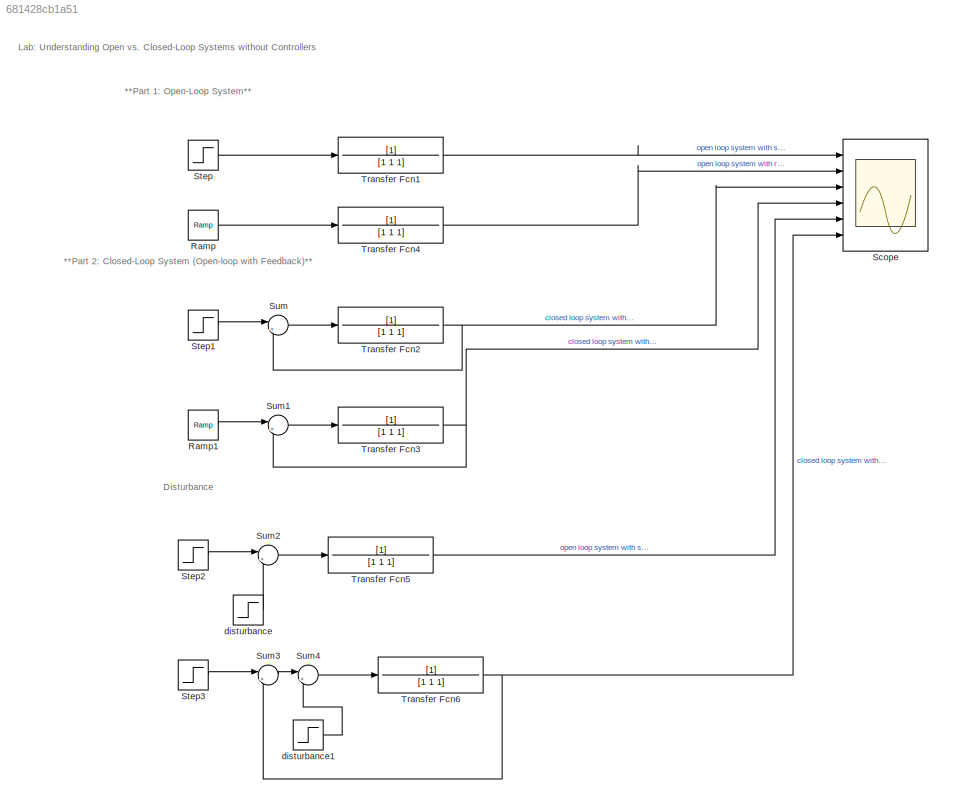
MODEL slx_681428cb1a51
KIND model
CONFIG AbsTol = auto
CONFIG EnableMultiTasking = off
CONFIG FixedStep = auto
CONFIG MaxStep = auto
CONFIG MinStep = auto
CONFIG RelTol = 1e-3
CONFIG SampleTimeConstraint = Unconstrained
CONFIG SolverName = VariableStepAuto
CONFIG StartTime = 0.0
CONFIG StopTime = 10.0
BLOCK [Reference] Ramp  REF=simulink/Sources/Ramp
  Ports = [0, 1]
  SourceBlock = simulink/Sources/Ramp
  SourceProductBaseCode = SL
  SourceType = Ramp
BLOCK [Reference] Ramp1  REF=simulink/Sources/Ramp
  Ports = [0, 1]
  SourceBlock = simulink/Sources/Ramp
  SourceProductBaseCode = SL
  SourceType = Ramp
BLOCK [Scope] Scope
  Floating = off
  NumInputPorts = 6
  Ports = [6]
  ScopeSpecificationString = Simulink.scopes.TimeScopeBlockCfg('CurrentConfiguration', extmgr.ConfigurationSet(extmgr.Configuration('Core','General UI',true),extmgr.Configuration('Core','Source UI',true),extmgr.Configuration('Sources','WiredSimulink',true),extmgr.Configuration('Visuals','Time Domain',true,'SerializedDisplays',{struct('MinYLimReal','-1.12406','MaxYLimReal','10.1165','YLabelReal','','MinYLimMag','0.00000','MaxY...<+1623ch>
BLOCK [Step] Step
  SampleTime = 0
BLOCK [Step] Step1
  SampleTime = 0
BLOCK [Step] Step2
  SampleTime = 0
BLOCK [Step] Step3
  SampleTime = 0
BLOCK [Sum] Sum
  Inputs = |+-
  Ports = [2, 1]
BLOCK [Sum] Sum1
  Inputs = |+-
  Ports = [2, 1]
BLOCK [Sum] Sum2
  Inputs = |+-
  Ports = [2, 1]
BLOCK [Sum] Sum3
  Inputs = |+-
  Ports = [2, 1]
BLOCK [Sum] Sum4
  Inputs = |+-
  Ports = [2, 1]
BLOCK [TransferFcn] Transfer Fcn1
  Denominator = [1 1 1]
BLOCK [TransferFcn] Transfer Fcn2
  Denominator = [1 1 1]
BLOCK [TransferFcn] Transfer Fcn3
  Denominator = [1 1 1]
BLOCK [TransferFcn] Transfer Fcn4
  Denominator = [1 1 1]
BLOCK [TransferFcn] Transfer Fcn5
  Denominator = [1 1 1]
BLOCK [TransferFcn] Transfer Fcn6
  Denominator = [1 1 1]
BLOCK [Step] disturbance
  After = 0.2
  SampleTime = 0
  Time = 5
BLOCK [Step] disturbance1
  After = 0.2
  SampleTime = 0
  Time = 5
ANNOTATION (root): L ab: Understanding Open vs. Closed-Loop Systems without Controllers
ANNOTATION (root): * *Part 2: Closed-Loop System (Open-loop with Feedback)**
ANNOTATION (root): * *Part 1: Open-Loop System**
ANNOTATION (root): Disturbance
LINE Ramp1:1 -> Sum1:1
LINE Ramp:1 -> Transfer Fcn4:1
LINE Step1:1 -> Sum:1
LINE Step2:1 -> Sum2:1
LINE Step3:1 -> Sum3:1
LINE Step:1 -> Transfer Fcn1:1
LINE Sum1:1 -> Transfer Fcn3:1
LINE Sum2:1 -> Transfer Fcn5:1
LINE Sum3:1 -> Sum4:1
LINE Sum4:1 -> Transfer Fcn6:1
LINE Sum:1 -> Transfer Fcn2:1
LINE Transfer Fcn1:1 -> Scope:1
NET Transfer Fcn2:1 -> Scope:3, Sum:2
NET Transfer Fcn3:1 -> Scope:4, Sum1:2
LINE Transfer Fcn4:1 -> Scope:2
LINE Transfer Fcn5:1 -> Scope:5
NET Transfer Fcn6:1 -> Scope:6, Sum3:2
LINE disturbance1:1 -> Sum4:2
LINE disturbance:1 -> Sum2:2
note: NET lines group one-source signal fan-out (src -> all destinations, sorted); 1:1 wires keep LINE
